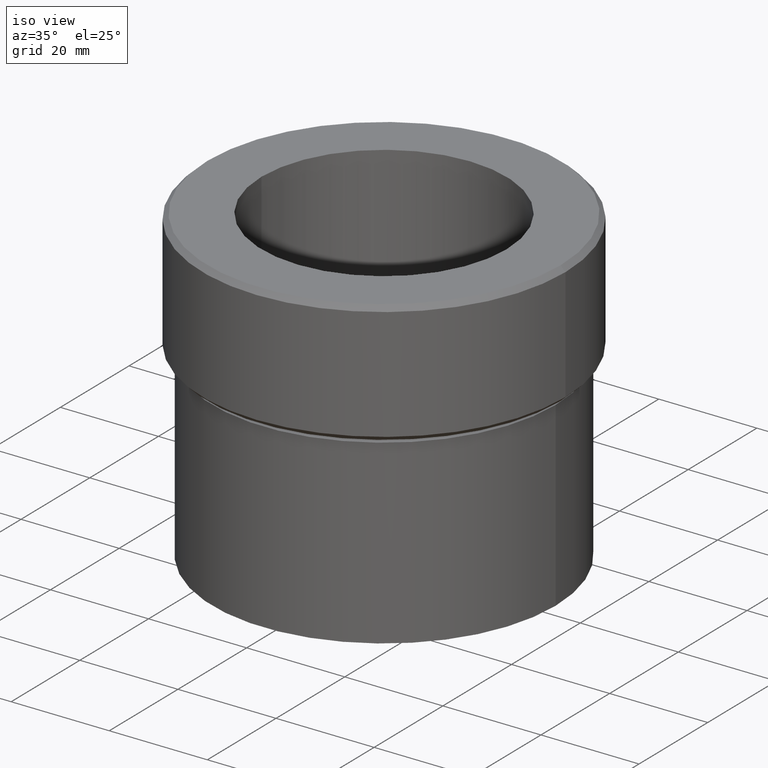
[diagram: clean part render]
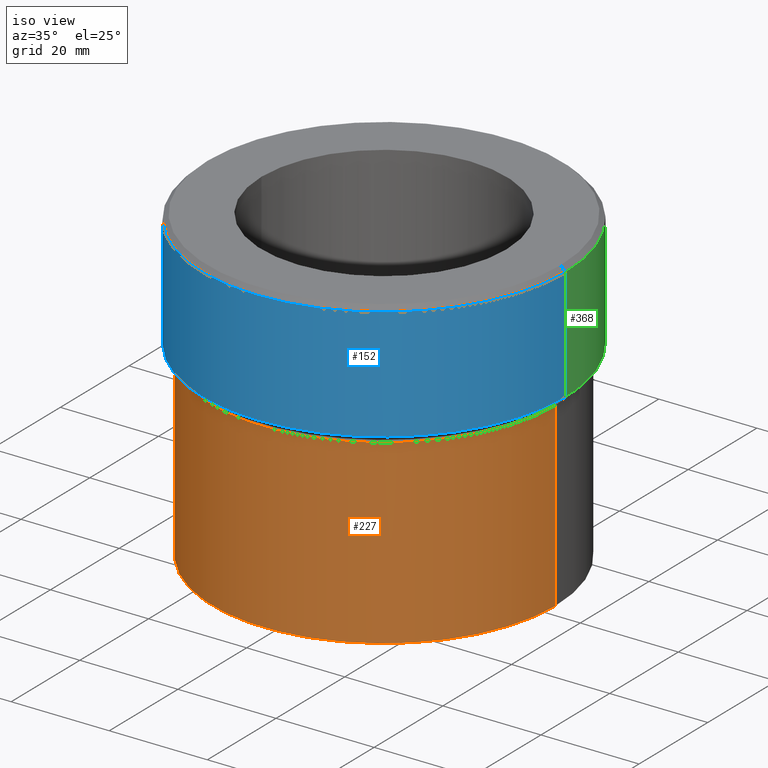
[diagram: same view with three faces highlighted in distinct colors, each labeled with its STEP entity id]
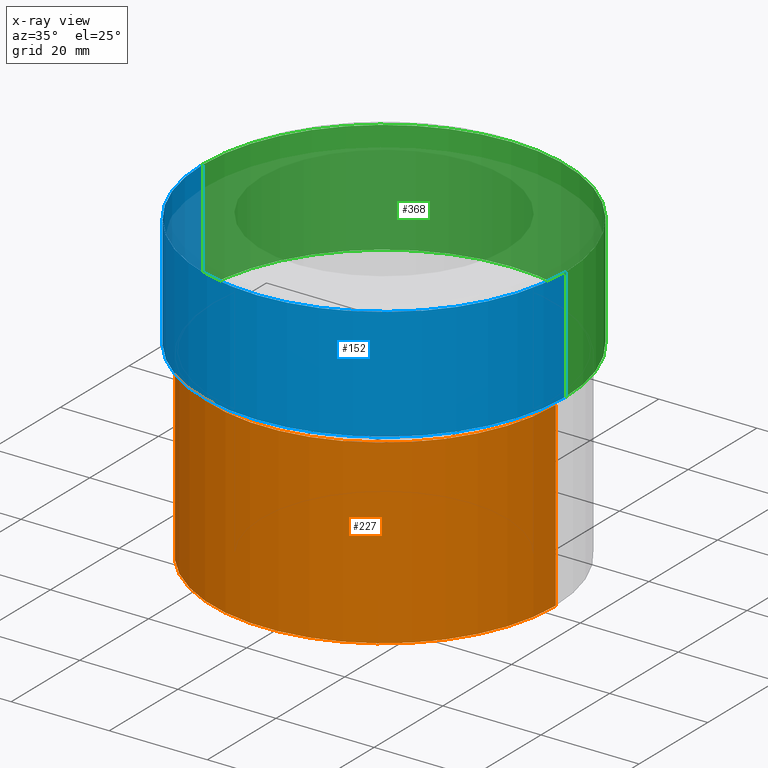
[diagram: x-ray of the same camera — body ghosted, the three highlighted faces saturated]
A machine part, iso view with three faces highlighted in distinct colors.
The next image is the same camera in x-ray (body ghosted, the three faces saturated) — at least one of them is partly hidden behind the body in this view.
Their STEP definitions:

[orange] entity #227 — the highlighted cylindrical surface (partial cylindrical patch) has radius 35 mm, axis along (-0, -0, 1).
#27 = DIRECTION ( 'NONE',  ( 1.000000000000000000, 0.000000000000000000, 0.000000000000000000 ) ) ;
#31 = ORIENTED_EDGE ( 'NONE', *, *, #261, .F. ) ;
#37 = CARTESIAN_POINT ( 'NONE',  ( 35.00000000000000000, 0.000000000000000000, -26.00000000000000000 ) ) ;
#51 = LINE ( 'NONE', #221, #160 ) ;
#54 = DIRECTION ( 'NONE',  ( 1.000000000000000000, 0.000000000000000000, 0.000000000000000000 ) ) ;
#76 = ORIENTED_EDGE ( 'NONE', *, *, #143, .T. ) ;
#126 = EDGE_LOOP ( 'NONE', ( #31, #76, #193, #390 ) ) ;
#127 = FACE_OUTER_BOUND ( 'NONE', #126, .T. ) ;
#133 = DIRECTION ( 'NONE',  ( -0.000000000000000000, -0.000000000000000000, 1.000000000000000000 ) ) ;
#136 = VERTEX_POINT ( 'NONE', #37 ) ;
#143 = EDGE_CURVE ( 'NONE', #236, #402, #354, .T. ) ;
#160 = VECTOR ( 'NONE', #379, 1000.000000000000000 ) ;
#193 = ORIENTED_EDGE ( 'NONE', *, *, #500, .T. ) ;
#205 = CYLINDRICAL_SURFACE ( 'NONE', #387, 35.00000000000000000 ) ;
#221 = CARTESIAN_POINT ( 'NONE',  ( 35.00000000000000000, 0.000000000000000000, 0.000000000000000000 ) ) ;
#227 = ADVANCED_FACE ( 'NONE', ( #127 ), #205, .T. ) ;
#236 = VERTEX_POINT ( 'NONE', #456 ) ;
#261 = EDGE_CURVE ( 'NONE', #236, #393, #494, .T. ) ;
#265 = VECTOR ( 'NONE', #458, 1000.000000000000000 ) ;
#294 = DIRECTION ( 'NONE',  ( 1.000000000000000000, 0.000000000000000000, 0.000000000000000000 ) ) ;
#299 = DIRECTION ( 'NONE',  ( -0.000000000000000000, -0.000000000000000000, 1.000000000000000000 ) ) ;
#336 = AXIS2_PLACEMENT_3D ( 'NONE', #526, #510, #27 ) ;
#354 = CIRCLE ( 'NONE', #336, 35.00000000000000000 ) ;
#365 = CIRCLE ( 'NONE', #443, 35.00000000000000000 ) ;
#379 = DIRECTION ( 'NONE',  ( -0.000000000000000000, -0.000000000000000000, 1.000000000000000000 ) ) ;
#387 = AXIS2_PLACEMENT_3D ( 'NONE', #417, #299, #54 ) ;
#390 = ORIENTED_EDGE ( 'NONE', *, *, #507, .F. ) ;
#393 = VERTEX_POINT ( 'NONE', #406 ) ;
#402 = VERTEX_POINT ( 'NONE', #503 ) ;
#406 = CARTESIAN_POINT ( 'NONE',  ( -35.00000000000000000, 4.286263797015736496E-15, -26.00000000000000000 ) ) ;
#417 = CARTESIAN_POINT ( 'NONE',  ( 0.000000000000000000, 0.000000000000000000, 0.000000000000000000 ) ) ;
#443 = AXIS2_PLACEMENT_3D ( 'NONE', #495, #133, #294 ) ;
#456 = CARTESIAN_POINT ( 'NONE',  ( -35.00000000000000000, 4.286263797015736496E-15, -63.00000000000000000 ) ) ;
#458 = DIRECTION ( 'NONE',  ( -0.000000000000000000, -0.000000000000000000, 1.000000000000000000 ) ) ;
#460 = CARTESIAN_POINT ( 'NONE',  ( -35.00000000000000000, 4.286263797015736496E-15, 0.000000000000000000 ) ) ;
#494 = LINE ( 'NONE', #460, #265 ) ;
#495 = CARTESIAN_POINT ( 'NONE',  ( 0.000000000000000000, 0.000000000000000000, -26.00000000000000000 ) ) ;
#500 = EDGE_CURVE ( 'NONE', #402, #136, #51, .T. ) ;
#503 = CARTESIAN_POINT ( 'NONE',  ( 35.00000000000000000, 0.000000000000000000, -63.00000000000000000 ) ) ;
#507 = EDGE_CURVE ( 'NONE', #393, #136, #365, .T. ) ;
#510 = DIRECTION ( 'NONE',  ( -0.000000000000000000, -0.000000000000000000, 1.000000000000000000 ) ) ;
#526 = CARTESIAN_POINT ( 'NONE',  ( 0.000000000000000000, 0.000000000000000000, -63.00000000000000000 ) ) ;

[blue] entity #152 — the highlighted cylindrical surface (partial cylindrical patch) has radius 37 mm, axis along (-0, -0, 1).
#5 = DIRECTION ( 'NONE',  ( -0.000000000000000000, -0.000000000000000000, 1.000000000000000000 ) ) ;
#12 = VERTEX_POINT ( 'NONE', #430 ) ;
#33 = CARTESIAN_POINT ( 'NONE',  ( -37.00000000000000000, 4.531193156845206793E-15, -0.9999999999999870104 ) ) ;
#39 = ORIENTED_EDGE ( 'NONE', *, *, #195, .T. ) ;
#41 = DIRECTION ( 'NONE',  ( -0.000000000000000000, -0.000000000000000000, 1.000000000000000000 ) ) ;
#44 = CYLINDRICAL_SURFACE ( 'NONE', #347, 37.00000000000000000 ) ;
#61 = CARTESIAN_POINT ( 'NONE',  ( 37.00000000000000000, 0.000000000000000000, -23.99999999999997158 ) ) ;
#62 = DIRECTION ( 'NONE',  ( 1.000000000000000000, 0.000000000000000000, 0.000000000000000000 ) ) ;
#63 = VECTOR ( 'NONE', #41, 1000.000000000000000 ) ;
#80 = VERTEX_POINT ( 'NONE', #409 ) ;
#125 = EDGE_CURVE ( 'NONE', #439, #12, #196, .T. ) ;
#129 = DIRECTION ( 'NONE',  ( -1.000000000000000000, 0.000000000000000000, 0.000000000000000000 ) ) ;
#130 = VECTOR ( 'NONE', #258, 1000.000000000000000 ) ;
#152 = ADVANCED_FACE ( 'NONE', ( #325 ), #44, .T. ) ;
#155 = ORIENTED_EDGE ( 'NONE', *, *, #125, .T. ) ;
#195 = EDGE_CURVE ( 'NONE', #80, #439, #424, .T. ) ;
#196 = LINE ( 'NONE', #289, #63 ) ;
#231 = CIRCLE ( 'NONE', #476, 37.00000000000000000 ) ;
#242 = CARTESIAN_POINT ( 'NONE',  ( 0.000000000000000000, 0.000000000000000000, 0.000000000000000000 ) ) ;
#258 = DIRECTION ( 'NONE',  ( -0.000000000000000000, -0.000000000000000000, 1.000000000000000000 ) ) ;
#284 = EDGE_CURVE ( 'NONE', #12, #357, #231, .T. ) ;
#289 = CARTESIAN_POINT ( 'NONE',  ( 37.00000000000000000, 0.000000000000000000, 0.000000000000000000 ) ) ;
#313 = DIRECTION ( 'NONE',  ( 0.000000000000000000, 0.000000000000000000, -1.000000000000000000 ) ) ;
#325 = FACE_OUTER_BOUND ( 'NONE', #451, .T. ) ;
#347 = AXIS2_PLACEMENT_3D ( 'NONE', #242, #491, #353 ) ;
#353 = DIRECTION ( 'NONE',  ( 1.000000000000000000, 0.000000000000000000, 0.000000000000000000 ) ) ;
#357 = VERTEX_POINT ( 'NONE', #33 ) ;
#392 = CARTESIAN_POINT ( 'NONE',  ( 0.000000000000000000, 0.000000000000000000, -0.9999999999999870104 ) ) ;
#408 = EDGE_CURVE ( 'NONE', #80, #357, #472, .T. ) ;
#409 = CARTESIAN_POINT ( 'NONE',  ( -37.00000000000000000, 4.531193156845206793E-15, -23.99999999999997158 ) ) ;
#412 = ORIENTED_EDGE ( 'NONE', *, *, #284, .T. ) ;
#424 = CIRCLE ( 'NONE', #432, 37.00000000000000000 ) ;
#426 = CARTESIAN_POINT ( 'NONE',  ( -37.00000000000000000, 4.531193156845206793E-15, 0.000000000000000000 ) ) ;
#430 = CARTESIAN_POINT ( 'NONE',  ( 37.00000000000000000, 0.000000000000000000, -0.9999999999999870104 ) ) ;
#432 = AXIS2_PLACEMENT_3D ( 'NONE', #496, #5, #129 ) ;
#439 = VERTEX_POINT ( 'NONE', #61 ) ;
#445 = ORIENTED_EDGE ( 'NONE', *, *, #408, .F. ) ;
#451 = EDGE_LOOP ( 'NONE', ( #445, #39, #155, #412 ) ) ;
#472 = LINE ( 'NONE', #426, #130 ) ;
#476 = AXIS2_PLACEMENT_3D ( 'NONE', #392, #313, #62 ) ;
#491 = DIRECTION ( 'NONE',  ( -0.000000000000000000, -0.000000000000000000, 1.000000000000000000 ) ) ;
#496 = CARTESIAN_POINT ( 'NONE',  ( 0.000000000000000000, 0.000000000000000000, -23.99999999999997158 ) ) ;

[green] entity #368 — the highlighted cylindrical surface (partial cylindrical patch) has radius 37 mm, axis along (-0, -0, 1).
#12 = VERTEX_POINT ( 'NONE', #430 ) ;
#19 = AXIS2_PLACEMENT_3D ( 'NONE', #485, #186, #188 ) ;
#33 = CARTESIAN_POINT ( 'NONE',  ( -37.00000000000000000, 4.531193156845206793E-15, -0.9999999999999870104 ) ) ;
#41 = DIRECTION ( 'NONE',  ( -0.000000000000000000, -0.000000000000000000, 1.000000000000000000 ) ) ;
#61 = CARTESIAN_POINT ( 'NONE',  ( 37.00000000000000000, 0.000000000000000000, -23.99999999999997158 ) ) ;
#63 = VECTOR ( 'NONE', #41, 1000.000000000000000 ) ;
#71 = ORIENTED_EDGE ( 'NONE', *, *, #243, .T. ) ;
#80 = VERTEX_POINT ( 'NONE', #409 ) ;
#84 = EDGE_CURVE ( 'NONE', #357, #12, #128, .T. ) ;
#102 = ORIENTED_EDGE ( 'NONE', *, *, #84, .T. ) ;
#125 = EDGE_CURVE ( 'NONE', #439, #12, #196, .T. ) ;
#128 = CIRCLE ( 'NONE', #19, 37.00000000000000000 ) ;
#130 = VECTOR ( 'NONE', #258, 1000.000000000000000 ) ;
#144 = CARTESIAN_POINT ( 'NONE',  ( 0.000000000000000000, 0.000000000000000000, 0.000000000000000000 ) ) ;
#186 = DIRECTION ( 'NONE',  ( 0.000000000000000000, 0.000000000000000000, -1.000000000000000000 ) ) ;
#188 = DIRECTION ( 'NONE',  ( 1.000000000000000000, 0.000000000000000000, 0.000000000000000000 ) ) ;
#196 = LINE ( 'NONE', #289, #63 ) ;
#229 = CYLINDRICAL_SURFACE ( 'NONE', #400, 37.00000000000000000 ) ;
#238 = ORIENTED_EDGE ( 'NONE', *, *, #125, .F. ) ;
#241 = EDGE_LOOP ( 'NONE', ( #71, #273, #102, #238 ) ) ;
#243 = EDGE_CURVE ( 'NONE', #439, #80, #441, .T. ) ;
#245 = DIRECTION ( 'NONE',  ( -1.000000000000000000, 0.000000000000000000, 0.000000000000000000 ) ) ;
#252 = CARTESIAN_POINT ( 'NONE',  ( 0.000000000000000000, 0.000000000000000000, -23.99999999999997158 ) ) ;
#258 = DIRECTION ( 'NONE',  ( -0.000000000000000000, -0.000000000000000000, 1.000000000000000000 ) ) ;
#273 = ORIENTED_EDGE ( 'NONE', *, *, #408, .T. ) ;
#289 = CARTESIAN_POINT ( 'NONE',  ( 37.00000000000000000, 0.000000000000000000, 0.000000000000000000 ) ) ;
#315 = DIRECTION ( 'NONE',  ( 1.000000000000000000, 0.000000000000000000, 0.000000000000000000 ) ) ;
#357 = VERTEX_POINT ( 'NONE', #33 ) ;
#368 = ADVANCED_FACE ( 'NONE', ( #436 ), #229, .T. ) ;
#383 = DIRECTION ( 'NONE',  ( -0.000000000000000000, -0.000000000000000000, 1.000000000000000000 ) ) ;
#397 = DIRECTION ( 'NONE',  ( -0.000000000000000000, -0.000000000000000000, 1.000000000000000000 ) ) ;
#400 = AXIS2_PLACEMENT_3D ( 'NONE', #144, #397, #315 ) ;
#408 = EDGE_CURVE ( 'NONE', #80, #357, #472, .T. ) ;
#409 = CARTESIAN_POINT ( 'NONE',  ( -37.00000000000000000, 4.531193156845206793E-15, -23.99999999999997158 ) ) ;
#426 = CARTESIAN_POINT ( 'NONE',  ( -37.00000000000000000, 4.531193156845206793E-15, 0.000000000000000000 ) ) ;
#430 = CARTESIAN_POINT ( 'NONE',  ( 37.00000000000000000, 0.000000000000000000, -0.9999999999999870104 ) ) ;
#436 = FACE_OUTER_BOUND ( 'NONE', #241, .T. ) ;
#439 = VERTEX_POINT ( 'NONE', #61 ) ;
#441 = CIRCLE ( 'NONE', #453, 37.00000000000000000 ) ;
#453 = AXIS2_PLACEMENT_3D ( 'NONE', #252, #383, #245 ) ;
#472 = LINE ( 'NONE', #426, #130 ) ;
#485 = CARTESIAN_POINT ( 'NONE',  ( 0.000000000000000000, 0.000000000000000000, -0.9999999999999870104 ) ) ;